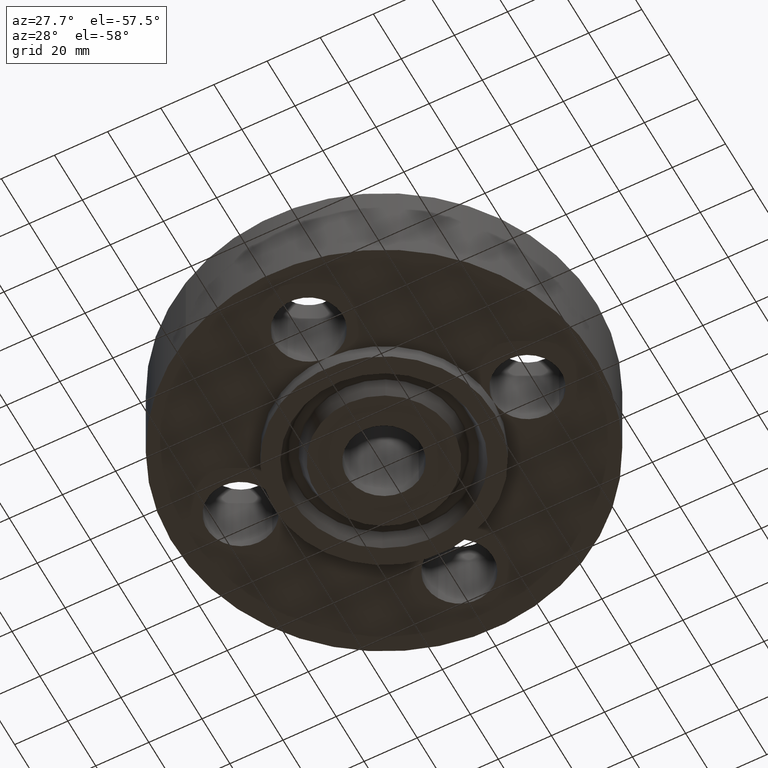
[diagram: clean part render]
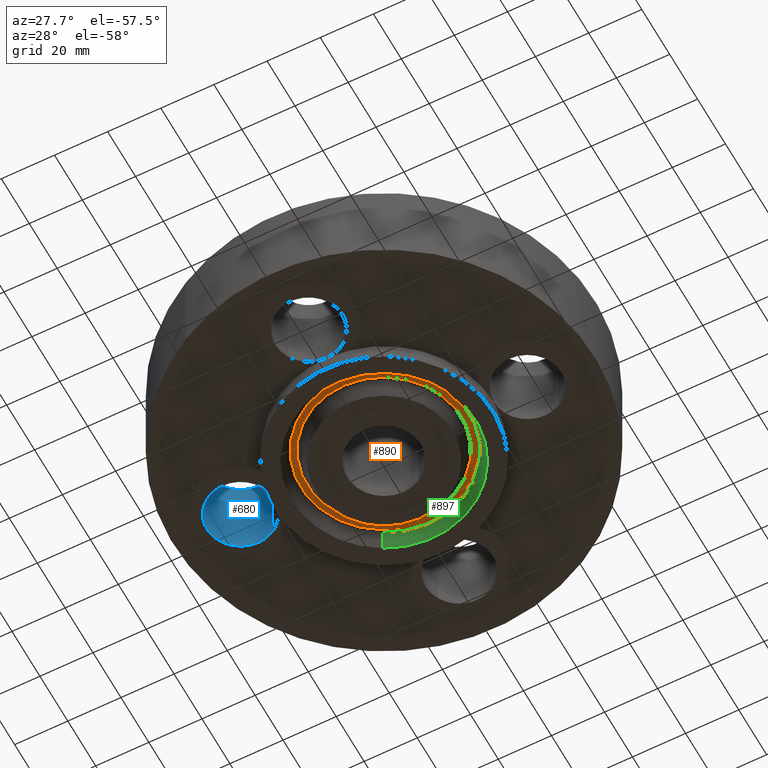
[diagram: same view with three faces highlighted in distinct colors, each labeled with its STEP entity id]
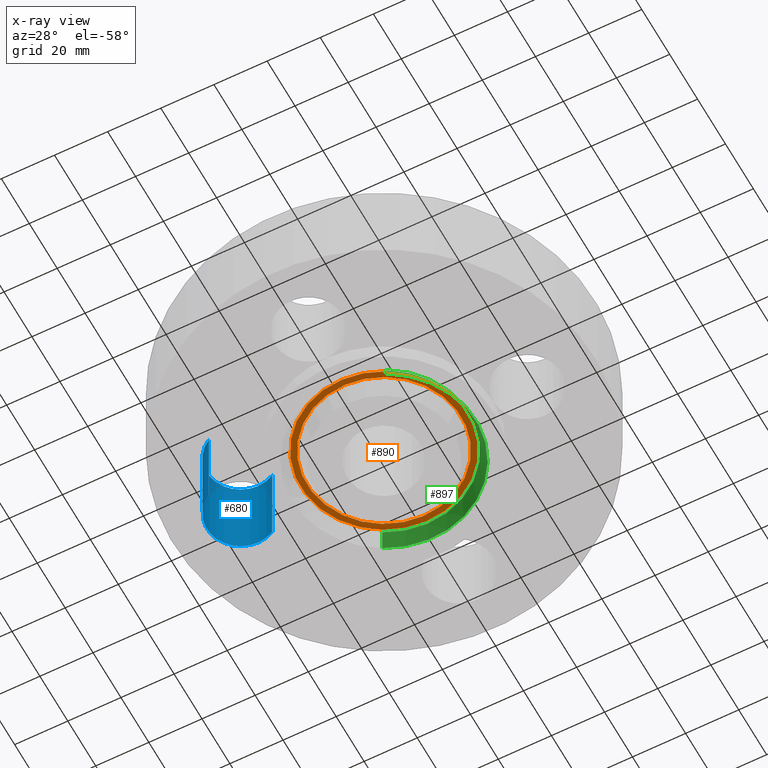
[diagram: x-ray of the same camera — body ghosted, the three highlighted faces saturated]
A machine part, auxiliary view with three faces highlighted in distinct colors.
The next image is the same camera in x-ray (body ghosted, the three faces saturated) — at least one of them is partly hidden behind the body in this view.
Their STEP definitions:

[orange] entity #890 — the highlighted planar face has unit normal (0, 0, -1).
#522=AXIS2_PLACEMENT_3D('Plane Axis2P3D',#519,#520,#521) ;
#812=AXIS2_PLACEMENT_3D('Circle Axis2P3D',#810,#811,$) ;
#858=AXIS2_PLACEMENT_3D('Circle Axis2P3D',#856,#857,$) ;
#874=AXIS2_PLACEMENT_3D('Circle Axis2P3D',#872,#873,$) ;
#883=AXIS2_PLACEMENT_3D('Circle Axis2P3D',#881,#882,$) ;
#519=CARTESIAN_POINT('Axis2P3D Location',(0.,1.62500000001,0.)) ;
#807=CARTESIAN_POINT('Vertex',(-0.591065932797,1.08193893271,-3.93386111088E-017)) ;
#810=CARTESIAN_POINT('Axis2P3D Location',(0.,0.,-3.93386111088E-017)) ;
#814=CARTESIAN_POINT('Vertex',(0.591065932797,-1.08193893271,-3.93386111088E-017)) ;
#856=CARTESIAN_POINT('Axis2P3D Location',(0.,0.,-3.93386111088E-017)) ;
#872=CARTESIAN_POINT('Axis2P3D Location',(0.,0.,0.)) ;
#876=CARTESIAN_POINT('Vertex',(0.547569721393,-1.00231965179,5.24514814784E-017)) ;
#878=CARTESIAN_POINT('Vertex',(-0.547569721393,1.00231965179,5.24514814784E-017)) ;
#881=CARTESIAN_POINT('Axis2P3D Location',(0.,0.,0.)) ;
#520=DIRECTION('Axis2P3D Direction',(0.,0.,-0.0393700787402)) ;
#521=DIRECTION('Axis2P3D XDirection',(0.0393700787402,0.,0.)) ;
#811=DIRECTION('Axis2P3D Direction',(0.,0.,0.0393700787402)) ;
#857=DIRECTION('Axis2P3D Direction',(0.,0.,0.0393700787402)) ;
#873=DIRECTION('Axis2P3D Direction',(0.,0.,-0.0393700787402)) ;
#882=DIRECTION('Axis2P3D Direction',(0.,0.,-0.0393700787402)) ;
#869=ORIENTED_EDGE('',*,*,#816,.F.) ;
#870=ORIENTED_EDGE('',*,*,#860,.F.) ;
#887=ORIENTED_EDGE('',*,*,#880,.T.) ;
#888=ORIENTED_EDGE('',*,*,#885,.T.) ;
#889=FACE_BOUND('',#886,.T.) ;
#890=ADVANCED_FACE('PartBody',(#871,#889),#523,.T.) ;
#813=CIRCLE('generated circle',#812,1.23286284356) ;
#859=CIRCLE('generated circle',#858,1.23286284356) ;
#875=CIRCLE('generated circle',#874,1.14213715645) ;
#884=CIRCLE('generated circle',#883,1.14213715645) ;
#816=EDGE_CURVE('',#808,#815,#813,.T.) ;
#860=EDGE_CURVE('',#815,#808,#859,.T.) ;
#880=EDGE_CURVE('',#877,#879,#875,.F.) ;
#885=EDGE_CURVE('',#879,#877,#884,.F.) ;
#868=EDGE_LOOP('',(#869,#870)) ;
#886=EDGE_LOOP('',(#887,#888)) ;
#871=FACE_OUTER_BOUND('',#868,.T.) ;
#523=PLANE('',#522) ;
#808=VERTEX_POINT('',#807) ;
#815=VERTEX_POINT('',#814) ;
#877=VERTEX_POINT('',#876) ;
#879=VERTEX_POINT('',#878) ;

[blue] entity #680 — the highlighted cylindrical surface (partial cylindrical patch) has radius 12.7 mm, axis along (0, 0, -1).
#575=AXIS2_PLACEMENT_3D('Circle Axis2P3D',#573,#574,$) ;
#653=AXIS2_PLACEMENT_3D('Cylinder Axis2P3D',#650,#651,#652) ;
#671=AXIS2_PLACEMENT_3D('Circle Axis2P3D',#669,#670,$) ;
#570=CARTESIAN_POINT('Vertex',(-1.88528723071,0.438791280947,0.)) ;
#573=CARTESIAN_POINT('Axis2P3D Location',(-2.12500000001,-5.59482469102E-016,0.)) ;
#577=CARTESIAN_POINT('Vertex',(-2.36471276931,-0.438791280947,0.)) ;
#650=CARTESIAN_POINT('Axis2P3D Location',(-2.12500000001,-1.10614932679E-016,1.37606299213)) ;
#655=CARTESIAN_POINT('Line Origine',(-2.36471276931,-0.438791280947,0.690000000003)) ;
#659=CARTESIAN_POINT('Vertex',(-2.36471276931,-0.438791280947,1.38000000001)) ;
#662=CARTESIAN_POINT('Line Origine',(-1.88528723071,0.438791280947,0.690000000003)) ;
#666=CARTESIAN_POINT('Vertex',(-1.88528723071,0.438791280947,1.38000000001)) ;
#669=CARTESIAN_POINT('Axis2P3D Location',(-2.12500000001,-1.10614932679E-016,1.38000000001)) ;
#574=DIRECTION('Axis2P3D Direction',(0.,0.,-0.0393700787402)) ;
#651=DIRECTION('Axis2P3D Direction',(0.,0.,-0.0393700787402)) ;
#652=DIRECTION('Axis2P3D XDirection',(0.0188750212049,0.0345504945626,0.)) ;
#656=DIRECTION('Vector Direction',(0.,0.,-0.0393700787402)) ;
#663=DIRECTION('Vector Direction',(0.,0.,-0.0393700787402)) ;
#670=DIRECTION('Axis2P3D Direction',(0.,0.,-0.0393700787402)) ;
#657=VECTOR('Line Direction',#656,0.0393700787402) ;
#664=VECTOR('Line Direction',#663,0.0393700787402) ;
#675=ORIENTED_EDGE('',*,*,#661,.F.) ;
#676=ORIENTED_EDGE('',*,*,#579,.T.) ;
#677=ORIENTED_EDGE('',*,*,#668,.T.) ;
#678=ORIENTED_EDGE('',*,*,#673,.F.) ;
#680=ADVANCED_FACE('PartBody',(#679),#654,.F.) ;
#576=CIRCLE('generated circle',#575,0.500000000002) ;
#672=CIRCLE('generated circle',#671,0.500000000002) ;
#654=CYLINDRICAL_SURFACE('generated cylinder',#653,0.500000000002) ;
#579=EDGE_CURVE('',#578,#571,#576,.T.) ;
#661=EDGE_CURVE('',#578,#660,#658,.F.) ;
#668=EDGE_CURVE('',#571,#667,#665,.F.) ;
#673=EDGE_CURVE('',#660,#667,#672,.T.) ;
#674=EDGE_LOOP('',(#675,#676,#677,#678)) ;
#679=FACE_OUTER_BOUND('',#674,.T.) ;
#658=LINE('Line',#655,#657) ;
#665=LINE('Line',#662,#664) ;
#571=VERTEX_POINT('',#570) ;
#578=VERTEX_POINT('',#577) ;
#660=VERTEX_POINT('',#659) ;
#667=VERTEX_POINT('',#666) ;

[green] entity #897 — the highlighted conical surface has half-angle 23 deg.
#758=AXIS2_PLACEMENT_3D('Circle Axis2P3D',#756,#757,$) ;
#832=AXIS2_PLACEMENT_3D('Cone Axis2P3D',#829,#830,#831) ;
#853=AXIS2_PLACEMENT_3D('Circle Axis2P3D',#851,#852,$) ;
#751=CARTESIAN_POINT('Vertex',(0.651779019735,-1.19307349289,-0.250000000001)) ;
#753=CARTESIAN_POINT('Vertex',(-0.651779019735,1.19307349289,-0.250000000001)) ;
#756=CARTESIAN_POINT('Axis2P3D Location',(-2.44773580232E-016,-6.2941777774E-016,-0.250000000001)) ;
#798=CARTESIAN_POINT('Vertex',(-0.604746652387,1.10698132194,-0.0188873350169)) ;
#800=CARTESIAN_POINT('Vertex',(0.604746652387,-1.10698132194,-0.0188873350169)) ;
#829=CARTESIAN_POINT('Axis2P3D Location',(0.,0.,-0.0188873350169)) ;
#834=CARTESIAN_POINT('Line Origine',(-0.628262836061,1.15002740742,-0.134443667509)) ;
#839=CARTESIAN_POINT('Line Origine',(0.628262836061,-1.15002740742,-0.134443667509)) ;
#851=CARTESIAN_POINT('Axis2P3D Location',(0.,0.,-0.0188873350169)) ;
#757=DIRECTION('Axis2P3D Direction',(0.,0.,-0.0393700787402)) ;
#830=DIRECTION('Axis2P3D Direction',(-0.,-0.,-0.0393700787402)) ;
#831=DIRECTION('Axis2P3D XDirection',(-0.0188750212049,0.0345504945626,0.)) ;
#835=DIRECTION('Vector Direction',(-0.00737505833565,0.0134999537303,-0.0362403485611)) ;
#840=DIRECTION('Vector Direction',(0.00737505833565,-0.0134999537303,-0.0362403485611)) ;
#852=DIRECTION('Axis2P3D Direction',(0.,0.,0.0393700787402)) ;
#836=VECTOR('Line Direction',#835,0.0393700787402) ;
#841=VECTOR('Line Direction',#840,0.0393700787402) ;
#892=ORIENTED_EDGE('',*,*,#760,.T.) ;
#893=ORIENTED_EDGE('',*,*,#843,.T.) ;
#894=ORIENTED_EDGE('',*,*,#855,.T.) ;
#895=ORIENTED_EDGE('',*,*,#838,.F.) ;
#897=ADVANCED_FACE('PartBody',(#896),#833,.F.) ;
#759=CIRCLE('generated circle',#758,1.35950000001) ;
#854=CIRCLE('generated circle',#853,1.26139849401) ;
#833=CONICAL_SURFACE('Cone',#832,1.26139849401,0.401425727959) ;
#760=EDGE_CURVE('',#754,#752,#759,.T.) ;
#838=EDGE_CURVE('',#754,#799,#837,.F.) ;
#843=EDGE_CURVE('',#752,#801,#842,.F.) ;
#855=EDGE_CURVE('',#801,#799,#854,.T.) ;
#891=EDGE_LOOP('',(#892,#893,#894,#895)) ;
#896=FACE_OUTER_BOUND('',#891,.T.) ;
#837=LINE('Line',#834,#836) ;
#842=LINE('Line',#839,#841) ;
#752=VERTEX_POINT('',#751) ;
#754=VERTEX_POINT('',#753) ;
#799=VERTEX_POINT('',#798) ;
#801=VERTEX_POINT('',#800) ;